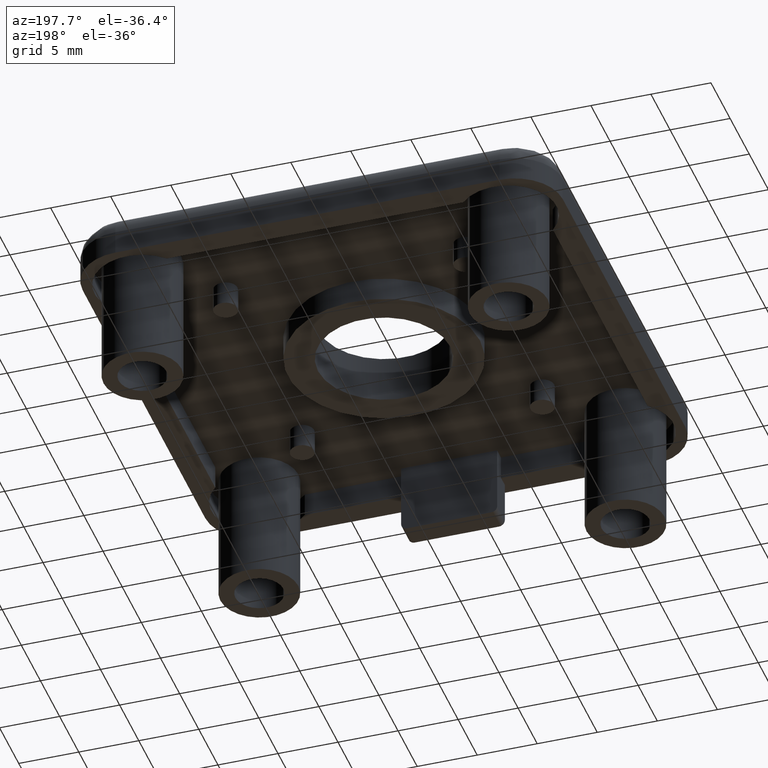
[diagram: clean part render]
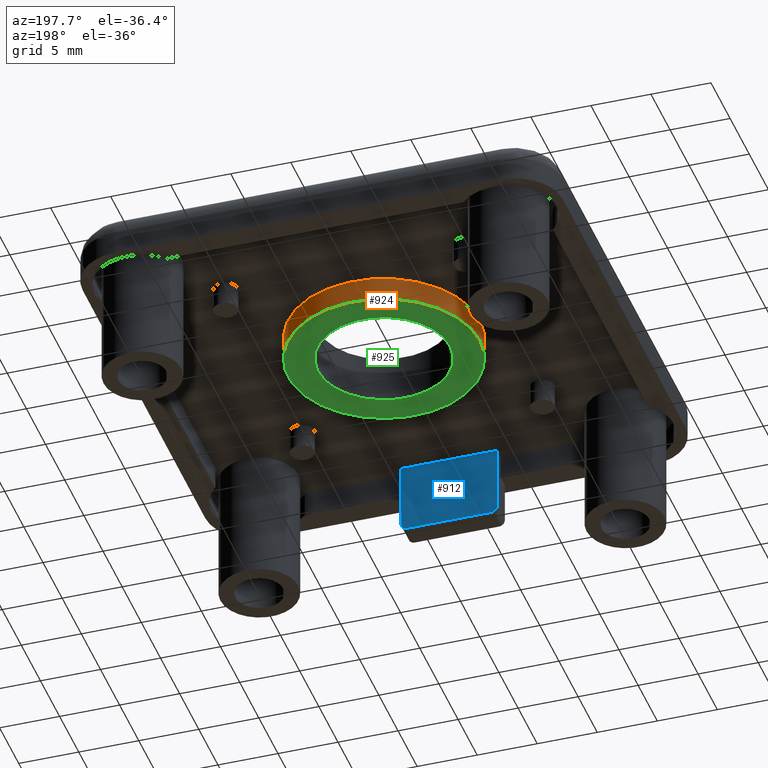
[diagram: same view with three faces highlighted in distinct colors, each labeled with its STEP entity id]
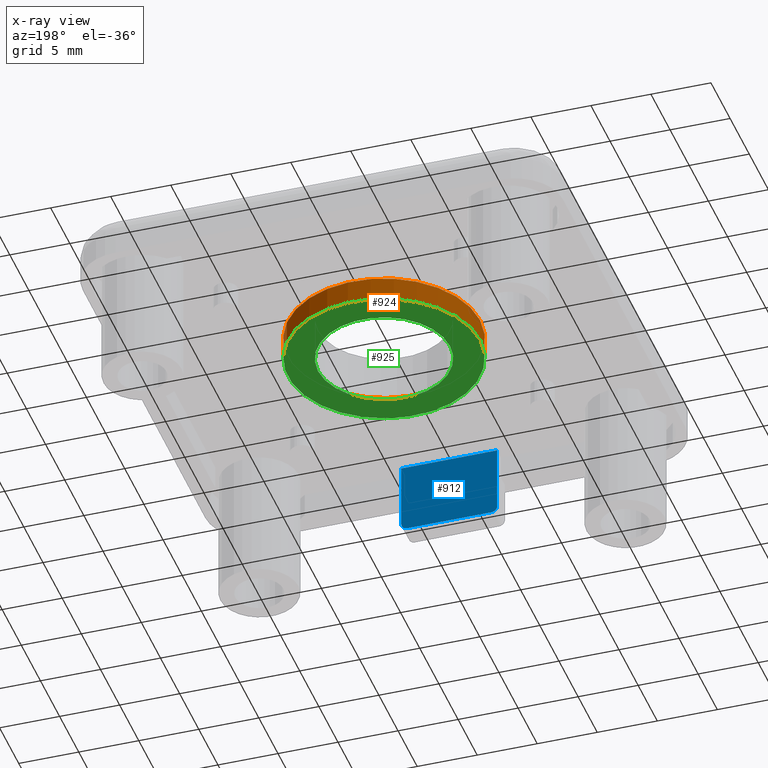
[diagram: x-ray of the same camera — body ghosted, the three highlighted faces saturated]
A machine part, auxiliary view with three faces highlighted in distinct colors.
The next image is the same camera in x-ray (body ghosted, the three faces saturated) — at least one of them is partly hidden behind the body in this view.
Their STEP definitions:

[orange] entity #924 — the highlighted cylindrical surface (bore or boss wall) has radius 8 mm, axis along (0, 0, -1).
#82=FACE_OUTER_BOUND('',#145,.T.);
#145=EDGE_LOOP('',(#699,#700,#701,#702));
#238=LINE('',#1531,#308);
#308=VECTOR('',#1220,8.);
#365=CIRCLE('',#1027,8.);
#366=CIRCLE('',#1028,8.);
#446=VERTEX_POINT('',#1528);
#447=VERTEX_POINT('',#1530);
#542=EDGE_CURVE('',#446,#446,#365,.T.);
#543=EDGE_CURVE('',#446,#447,#238,.T.);
#544=EDGE_CURVE('',#447,#447,#366,.T.);
#699=ORIENTED_EDGE('',*,*,#542,.F.);
#700=ORIENTED_EDGE('',*,*,#543,.T.);
#701=ORIENTED_EDGE('',*,*,#544,.F.);
#702=ORIENTED_EDGE('',*,*,#543,.F.);
#885=CYLINDRICAL_SURFACE('',#1026,8.);
#924=ADVANCED_FACE('',(#82),#885,.T.);
#1026=AXIS2_PLACEMENT_3D('',#1527,#1216,#1217);
#1027=AXIS2_PLACEMENT_3D('',#1529,#1218,#1219);
#1028=AXIS2_PLACEMENT_3D('',#1532,#1221,#1222);
#1216=DIRECTION('center_axis',(0.,0.,-1.));
#1217=DIRECTION('ref_axis',(1.,0.,0.));
#1218=DIRECTION('center_axis',(0.,0.,-1.));
#1219=DIRECTION('ref_axis',(1.,0.,0.));
#1220=DIRECTION('',(0.,0.,1.));
#1221=DIRECTION('center_axis',(0.,0.,1.));
#1222=DIRECTION('ref_axis',(1.,0.,0.));
#1527=CARTESIAN_POINT('Origin',(0.,0.,2.));
#1528=CARTESIAN_POINT('',(-8.,9.79717439317883E-16,0.));
#1529=CARTESIAN_POINT('Origin',(0.,0.,0.));
#1530=CARTESIAN_POINT('',(-8.,9.79717439317883E-16,2.));
#1531=CARTESIAN_POINT('',(-8.,9.79717439317883E-16,2.));
#1532=CARTESIAN_POINT('Origin',(0.,0.,2.));

[blue] entity #912 — the highlighted planar face has unit normal (0, 1, 0).
#38=PLANE('',#998);
#70=FACE_OUTER_BOUND('',#132,.T.);
#132=EDGE_LOOP('',(#645,#646,#647,#648,#649,#650));
#211=LINE('',#1434,#281);
#217=LINE('',#1451,#287);
#221=LINE('',#1458,#291);
#222=LINE('',#1459,#292);
#281=VECTOR('',#1123,5.5);
#287=VECTOR('',#1139,5.5);
#291=VECTOR('',#1145,8.);
#292=VECTOR('',#1146,7.);
#345=CIRCLE('',#990,0.5);
#348=CIRCLE('',#996,0.5);
#405=VERTEX_POINT('',#1417);
#406=VERTEX_POINT('',#1418);
#412=VERTEX_POINT('',#1432);
#416=VERTEX_POINT('',#1444);
#417=VERTEX_POINT('',#1446);
#418=VERTEX_POINT('',#1450);
#489=EDGE_CURVE('',#405,#406,#345,.T.);
#497=EDGE_CURVE('',#412,#405,#211,.T.);
#503=EDGE_CURVE('',#416,#417,#348,.T.);
#505=EDGE_CURVE('',#418,#417,#217,.T.);
#509=EDGE_CURVE('',#418,#412,#221,.T.);
#510=EDGE_CURVE('',#406,#416,#222,.T.);
#645=ORIENTED_EDGE('',*,*,#489,.F.);
#646=ORIENTED_EDGE('',*,*,#497,.F.);
#647=ORIENTED_EDGE('',*,*,#509,.F.);
#648=ORIENTED_EDGE('',*,*,#505,.T.);
#649=ORIENTED_EDGE('',*,*,#503,.F.);
#650=ORIENTED_EDGE('',*,*,#510,.F.);
#912=ADVANCED_FACE('',(#70),#38,.T.);
#990=AXIS2_PLACEMENT_3D('',#1419,#1111,#1112);
#996=AXIS2_PLACEMENT_3D('',#1447,#1134,#1135);
#998=AXIS2_PLACEMENT_3D('',#1457,#1143,#1144);
#1111=DIRECTION('center_axis',(-2.77555756156289E-16,-1.,0.));
#1112=DIRECTION('ref_axis',(-0.707106781186547,1.96261557335472E-16,-0.707106781186548));
#1123=DIRECTION('',(0.,0.,-1.));
#1134=DIRECTION('center_axis',(-2.77555756156289E-16,-1.,0.));
#1135=DIRECTION('ref_axis',(0.707106781186548,-1.96261557335472E-16,-0.707106781186548));
#1139=DIRECTION('',(0.,0.,-1.));
#1143=DIRECTION('center_axis',(2.77555756156289E-16,1.,0.));
#1144=DIRECTION('ref_axis',(1.,-2.77555756156289E-16,0.));
#1145=DIRECTION('',(-1.,2.77555756156289E-16,0.));
#1146=DIRECTION('',(1.,-2.77555756156289E-16,0.));
#1417=CARTESIAN_POINT('',(-4.00000000000001,-17.,-3.5));
#1418=CARTESIAN_POINT('',(-3.50000000000001,-17.,-4.));
#1419=CARTESIAN_POINT('Origin',(-3.50000000000001,-17.,-3.5));
#1432=CARTESIAN_POINT('',(-4.00000000000001,-17.,2.));
#1434=CARTESIAN_POINT('',(-4.00000000000001,-17.,2.));
#1444=CARTESIAN_POINT('',(3.5,-17.,-4.));
#1446=CARTESIAN_POINT('',(4.,-17.,-3.5));
#1447=CARTESIAN_POINT('Origin',(3.5,-17.,-3.5));
#1450=CARTESIAN_POINT('',(4.,-17.,2.));
#1451=CARTESIAN_POINT('',(4.,-17.,2.));
#1457=CARTESIAN_POINT('Origin',(-4.00000000000001,-17.,2.));
#1458=CARTESIAN_POINT('',(-2.00000000000001,-17.,2.));
#1459=CARTESIAN_POINT('',(4.,-17.,-4.));

[green] entity #925 — the highlighted planar face has unit normal (0, 0, 1).
#20=FACE_BOUND('',#147,.T.);
#46=PLANE('',#1029);
#83=FACE_OUTER_BOUND('',#146,.T.);
#146=EDGE_LOOP('',(#703));
#147=EDGE_LOOP('',(#704));
#365=CIRCLE('',#1027,8.);
#367=CIRCLE('',#1030,5.5);
#446=VERTEX_POINT('',#1528);
#448=VERTEX_POINT('',#1534);
#542=EDGE_CURVE('',#446,#446,#365,.T.);
#545=EDGE_CURVE('',#448,#448,#367,.T.);
#703=ORIENTED_EDGE('',*,*,#542,.T.);
#704=ORIENTED_EDGE('',*,*,#545,.T.);
#925=ADVANCED_FACE('',(#83,#20),#46,.F.);
#1027=AXIS2_PLACEMENT_3D('',#1529,#1218,#1219);
#1029=AXIS2_PLACEMENT_3D('',#1533,#1223,#1224);
#1030=AXIS2_PLACEMENT_3D('',#1535,#1225,#1226);
#1218=DIRECTION('center_axis',(0.,0.,-1.));
#1219=DIRECTION('ref_axis',(1.,0.,0.));
#1223=DIRECTION('center_axis',(0.,0.,1.));
#1224=DIRECTION('ref_axis',(1.,0.,0.));
#1225=DIRECTION('center_axis',(0.,0.,1.));
#1226=DIRECTION('ref_axis',(1.,0.,0.));
#1528=CARTESIAN_POINT('',(-8.,9.79717439317883E-16,0.));
#1529=CARTESIAN_POINT('Origin',(0.,0.,0.));
#1533=CARTESIAN_POINT('Origin',(5.44236046870305E-16,0.,0.));
#1534=CARTESIAN_POINT('',(-5.5,6.73555739531044E-16,0.));
#1535=CARTESIAN_POINT('Origin',(0.,0.,0.));